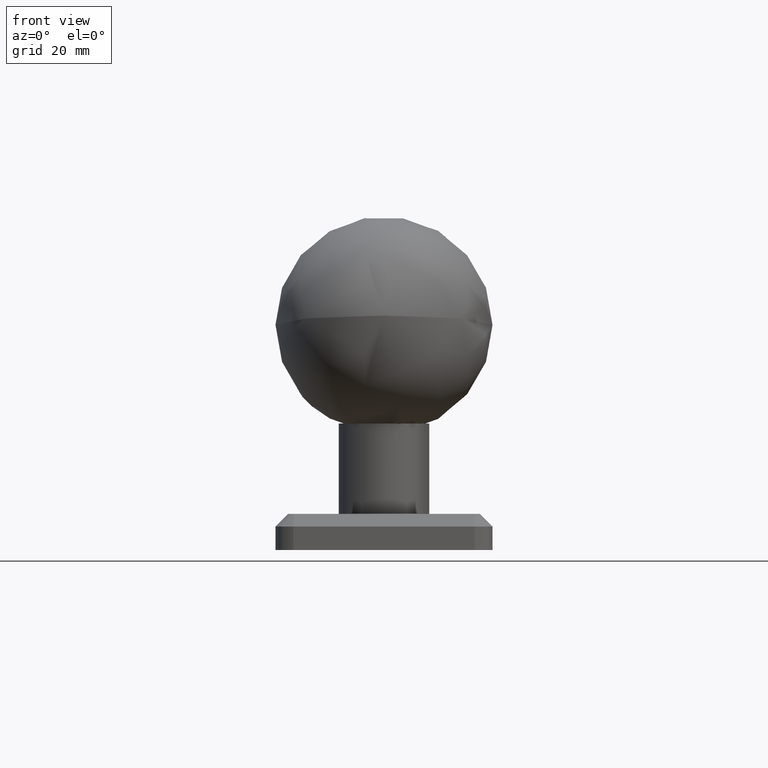
[diagram: clean part render]
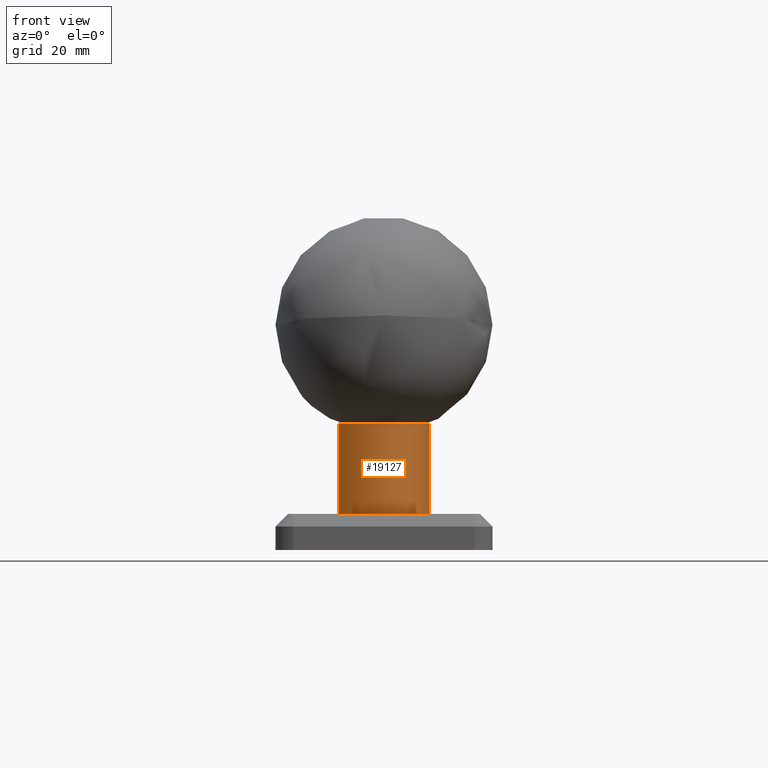
[diagram: same view with one face highlighted and labeled with its STEP entity id]
A machine part, front view. The second image highlights one B-rep face of the part: STEP entity #19127.
In plain terms, the highlighted cylindrical surface (bore or boss wall) has radius 12.5 mm, axis along (0, 0, 1).
Its self-contained STEP definition (entity closure, byte-faithful):
#1400 = DIRECTION ( 'NONE',  ( -1.000000000000000000, -2.775557561562890400E-016, 0.0000000000000000000 ) ) ;
#2269 = FACE_OUTER_BOUND ( 'NONE', #4481, .T. ) ;
#4026 = AXIS2_PLACEMENT_3D ( 'NONE', #8538, #16443, #9997 ) ;
#4056 = ORIENTED_EDGE ( 'NONE', *, *, #13585, .F. ) ;
#4481 = EDGE_LOOP ( 'NONE', ( #4056 ) ) ;
#6104 = CARTESIAN_POINT ( 'NONE',  ( -12.50000000000000000, -5.416668338900117300E-015, 0.0000000000000000000 ) ) ;
#6224 = CIRCLE ( 'NONE', #11948, 12.50000000000000400 ) ;
#7929 = DIRECTION ( 'NONE',  ( -1.000000000000000000, -1.557777109557202800E-016, 0.0000000000000000000 ) ) ;
#8253 = VERTEX_POINT ( 'NONE', #6104 ) ;
#8538 = CARTESIAN_POINT ( 'NONE',  ( -3.469446951953614200E-015, 22.27178028658928400, 0.0000000000000000000 ) ) ;
#9997 = DIRECTION ( 'NONE',  ( -1.000000000000000000, -2.775557561562890900E-016, 0.0000000000000000000 ) ) ;
#10143 = VERTEX_POINT ( 'NONE', #19837 ) ;
#10505 = CIRCLE ( 'NONE', #19550, 12.50000000000000000 ) ;
#11655 = EDGE_LOOP ( 'NONE', ( #16825 ) ) ;
#11897 = DIRECTION ( 'NONE',  ( -1.557777109557202500E-016, 1.000000000000000000, -0.0000000000000000000 ) ) ;
#11948 = AXIS2_PLACEMENT_3D ( 'NONE', #13621, #11897, #1400 ) ;
#13400 = EDGE_CURVE ( 'NONE', #8253, #8253, #10505, .T. ) ;
#13508 = CYLINDRICAL_SURFACE ( 'NONE', #4026, 12.50000000000000200 ) ;
#13585 = EDGE_CURVE ( 'NONE', #10143, #10143, #6224, .T. ) ;
#13621 = CARTESIAN_POINT ( 'NONE',  ( -3.894442773893006200E-015, 25.00000000000000000, 0.0000000000000000000 ) ) ;
#15555 = CARTESIAN_POINT ( 'NONE',  ( 0.0000000000000000000, -3.469446951953614200E-015, 0.0000000000000000000 ) ) ;
#16443 = DIRECTION ( 'NONE',  ( -1.557777109557202500E-016, 1.000000000000000000, -0.0000000000000000000 ) ) ;
#16825 = ORIENTED_EDGE ( 'NONE', *, *, #13400, .T. ) ;
#17090 = DIRECTION ( 'NONE',  ( -1.557777109557202500E-016, 1.000000000000000000, -0.0000000000000000000 ) ) ;
#19127 = ADVANCED_FACE ( 'NONE', ( #2269, #19294 ), #13508, .T. ) ;
#19294 = FACE_OUTER_BOUND ( 'NONE', #11655, .T. ) ;
#19550 = AXIS2_PLACEMENT_3D ( 'NONE', #15555, #17090, #7929 ) ;
#19837 = CARTESIAN_POINT ( 'NONE',  ( -12.50000000000000700, 24.99999999999999600, 0.0000000000000000000 ) ) ;